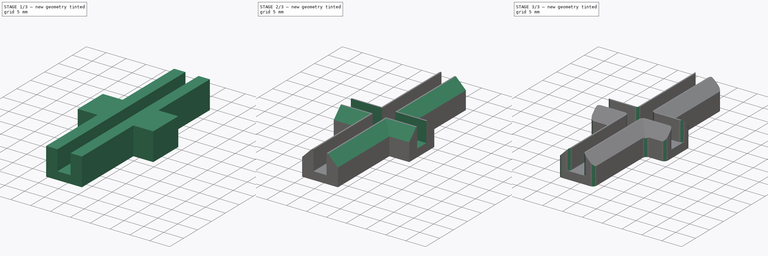
[diagram: build sequence overview — one tinted view per stage of 3, left to right]
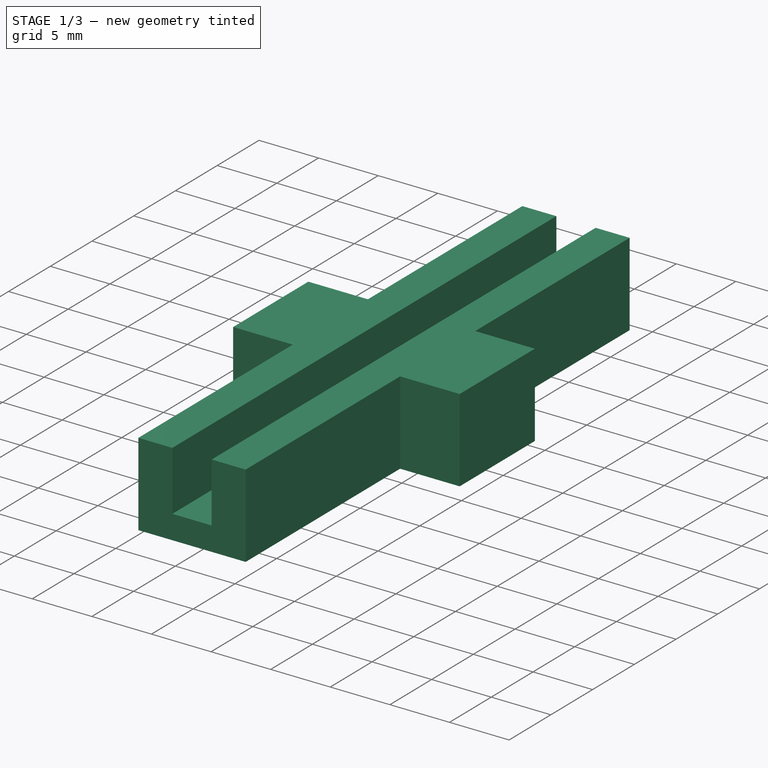
[diagram: stage 1 of 3 — iso view after this stage's code; geometry added in this stage tinted green]
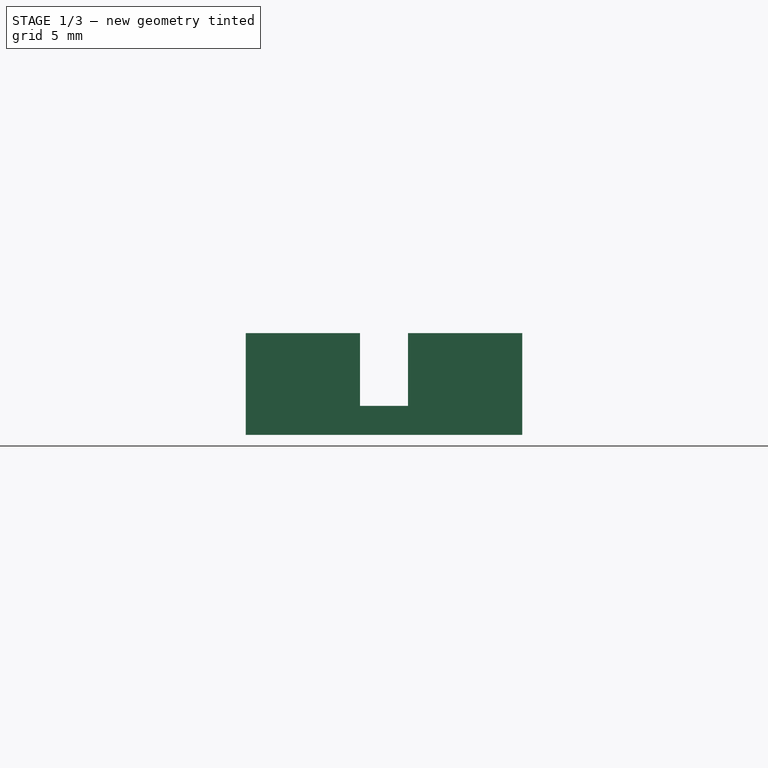
[diagram: stage 1 of 3 — front view after this stage's code; geometry added in this stage tinted green]
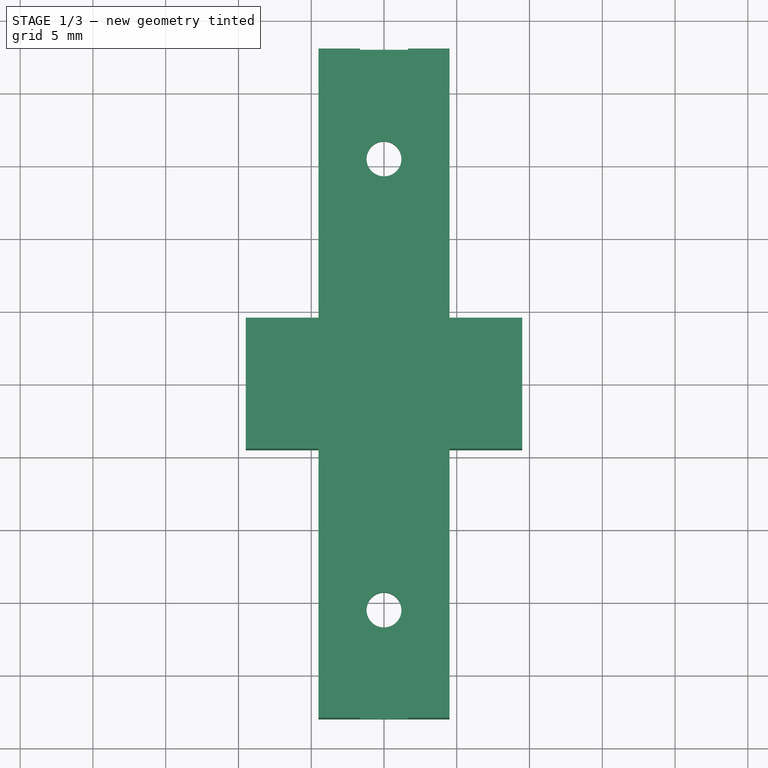
[diagram: stage 1 of 3 — top view after this stage's code; geometry added in this stage tinted green]
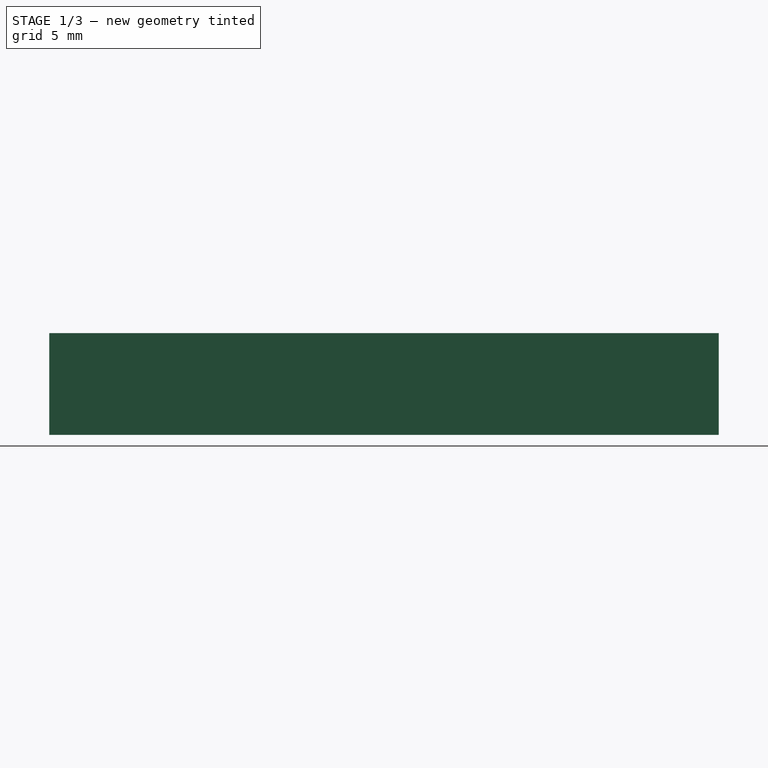
[diagram: stage 1 of 3 — right view after this stage's code; geometry added in this stage tinted green]
FCSTD DOCUMENT  (FreeCAD 0.16R6706 (Git))
Label: Halter3
License: All rights reserved
LicenseURL: http://de.wikipedia.org/wiki/Alle_Rechte_vorbehalten
objects: Sketcher::SketchObject×3, PartDesign::Pocket×2, PartDesign::Fillet×2, PartDesign::Pad×1, PartDesign::Chamfer×1
note: 12 computed .brp shape members not serialized (recipe doc carries the construction recipe); baked Part::Feature solids carry a one-line shape summary decoded from their .brp

FEATURE [Sketcher::SketchObject] Sketch
  sketch-geometry (14):
    g0: LineSegment StartX=-4.5 StartY=23 StartZ=0 EndX=4.5 EndY=23 EndZ=0
    g1: LineSegment StartX=4.5 StartY=23 StartZ=0 EndX=4.5 EndY=4.5 EndZ=0
    g2: LineSegment StartX=4.5 StartY=4.5 StartZ=0 EndX=9.5 EndY=4.5 EndZ=0
    g3: LineSegment StartX=9.5 StartY=4.5 StartZ=0 EndX=9.5 EndY=-4.5 EndZ=0
    g4: LineSegment StartX=9.5 StartY=-4.5 StartZ=0 EndX=4.5 EndY=-4.5 EndZ=0
    g5: LineSegment StartX=4.5 StartY=-4.5 StartZ=0 EndX=4.5 EndY=-23 EndZ=0
    g6: LineSegment StartX=4.5 StartY=-23 StartZ=0 EndX=-4.5 EndY=-23 EndZ=0
    g7: LineSegment StartX=-4.5 StartY=-23 StartZ=0 EndX=-4.5 EndY=-4.5 EndZ=0
    g8: LineSegment StartX=-4.5 StartY=-4.5 StartZ=0 EndX=-9.5 EndY=-4.5 EndZ=0
    g9: LineSegment StartX=-9.5 StartY=-4.5 StartZ=0 EndX=-9.5 EndY=4.5 EndZ=0
    g10: LineSegment StartX=-9.5 StartY=4.5 StartZ=0 EndX=-4.5 EndY=4.5 EndZ=0
    g11: LineSegment StartX=-4.5 StartY=4.5 StartZ=0 EndX=-4.5 EndY=23 EndZ=0
    g12: Circle CenterX=0 CenterY=15.5 CenterZ=0 NormalX=0 NormalY=0 NormalZ=1 Radius=1.2
    g13: Circle CenterX=0 CenterY=-15.5 CenterZ=0 NormalX=0 NormalY=0 NormalZ=1 Radius=1.2
  constraints (42):
    c: Horizontal(g0)
    c: Coincident(g0,g1)
    c: Vertical(g1)
    c: Coincident(g1,g2)
    c: Horizontal(g2)
    c: Coincident(g2,g3)
    c: Vertical(g3)
    c: Coincident(g3,g4)
    c: Horizontal(g4)
    c: Coincident(g4,g5)
    c: Vertical(g5)
    c: Coincident(g5,g6)
    c: Horizontal(g6)
    c: Coincident(g6,g7)
    c: Vertical(g7)
    c: Coincident(g7,g8)
    c: Horizontal(g8)
    c: Coincident(g8,g9)
    c: Vertical(g9)
    c: Coincident(g9,g10)
    c: Horizontal(g10)
    c: Coincident(g10,g11)
    c: Coincident(g11,g0)
    c: Vertical(g11)
    c: DistanceX(g0,g0) = 9
    c: Symmetric(g0,g0,g-2)
    c: Symmetric(g2,g3,g-1)
    c: Equal(g0,g3)
    c: Equal(g3,g9)
    c: Equal(g9,g6)
    c: Symmetric(g9,g8,g-1)
    c: Symmetric(g6,g5,g-2)
    c: DistanceX(g8,g3) = 19
    c: DistanceY(g5,g0) = 46
    c: Symmetric(g0,g5,g-1)
    c: PointOnObject(g12,g-2)
    c: PointOnObject(g13,g-2)
    c: Symmetric(g12,g13,g-1)
    c: Radius(g12) = 1.2
    c: Equal(g12,g13)
    c: Symmetric(g8,g3,g-2)
    c: DistanceY(g13,g12) = 31
FEATURE [PartDesign::Pad] Pad
  Length = 7
  Length2 = 100
  Sketch = -> Sketch
  Type = 0
FEATURE [Sketcher::SketchObject] Sketch001
  ExternalGeometry = -> [Pad]
  Placement = pos=(0,23,0) rot=(0,0.707107,0.707107;3.14159rad)
  Support = -> Pad [Face1]
  sketch-geometry (4):
    g0: LineSegment StartX=-1.65 StartY=7 StartZ=0 EndX=1.65 EndY=7 EndZ=0
    g1: LineSegment StartX=1.65 StartY=7 StartZ=0 EndX=1.65 EndY=2 EndZ=0
    g2: LineSegment StartX=1.65 StartY=2 StartZ=0 EndX=-1.65 EndY=2 EndZ=0
    g3: LineSegment StartX=-1.65 StartY=2 StartZ=0 EndX=-1.65 EndY=7 EndZ=0
  constraints (12):
    c: Coincident(g0,g1)
    c: Coincident(g1,g2)
    c: Coincident(g2,g3)
    c: Coincident(g3,g0)
    c: Horizontal(g0)
    c: Horizontal(g2)
    c: Vertical(g1)
    c: Vertical(g3)
    c: PointOnObject(g0,g-3)
    c: Symmetric(g0,g0,g-2)
    c: DistanceX(g0,g0) = 3.3
    c: DistanceY(g-1,g1) = 2
FEATURE [PartDesign::Pocket] Pocket
  Length = 50
  Sketch = -> Sketch001
  Type = 0
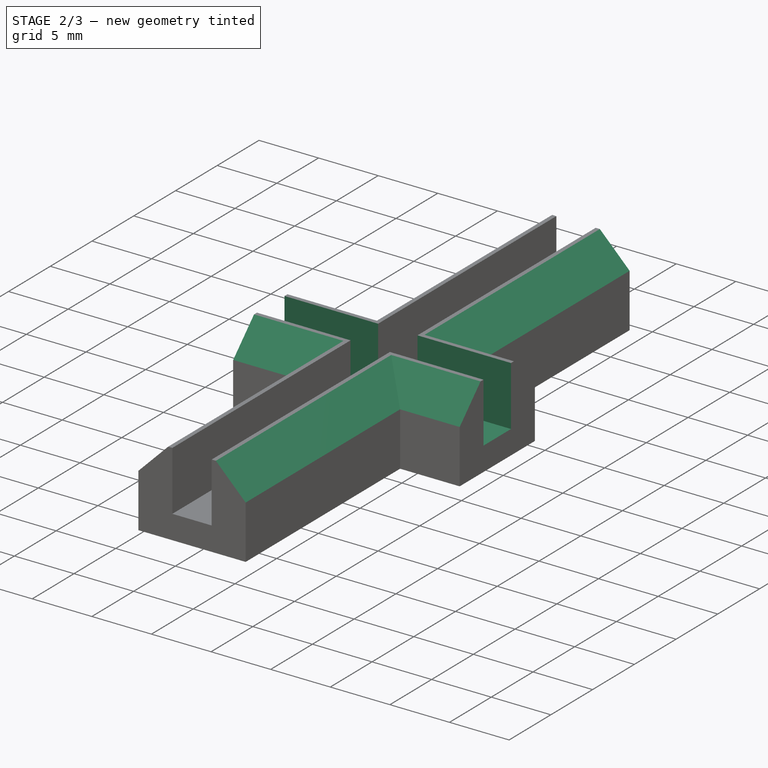
[diagram: stage 2 of 3 — iso view after this stage's code; geometry added in this stage tinted green]
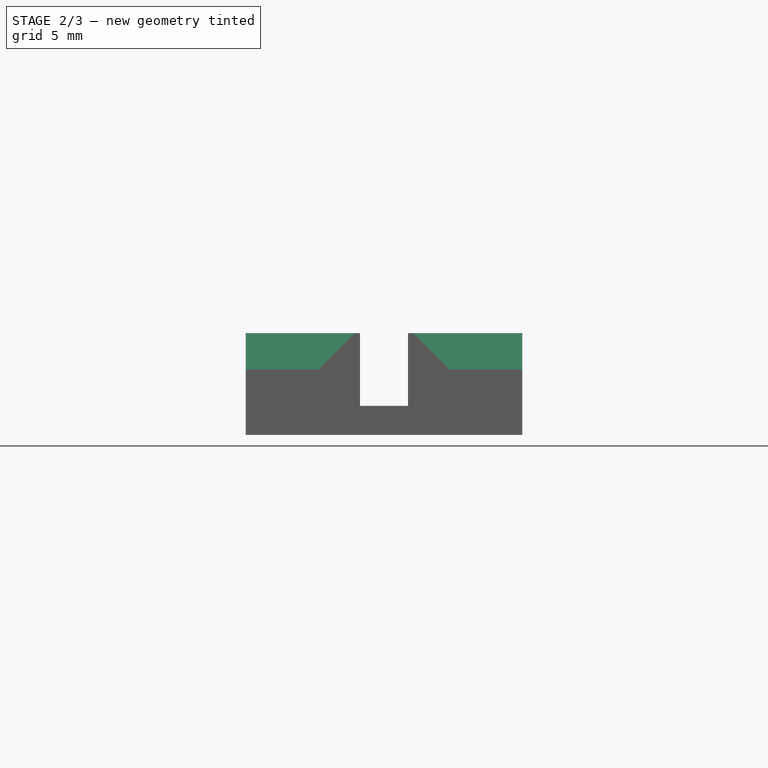
[diagram: stage 2 of 3 — front view after this stage's code; geometry added in this stage tinted green]
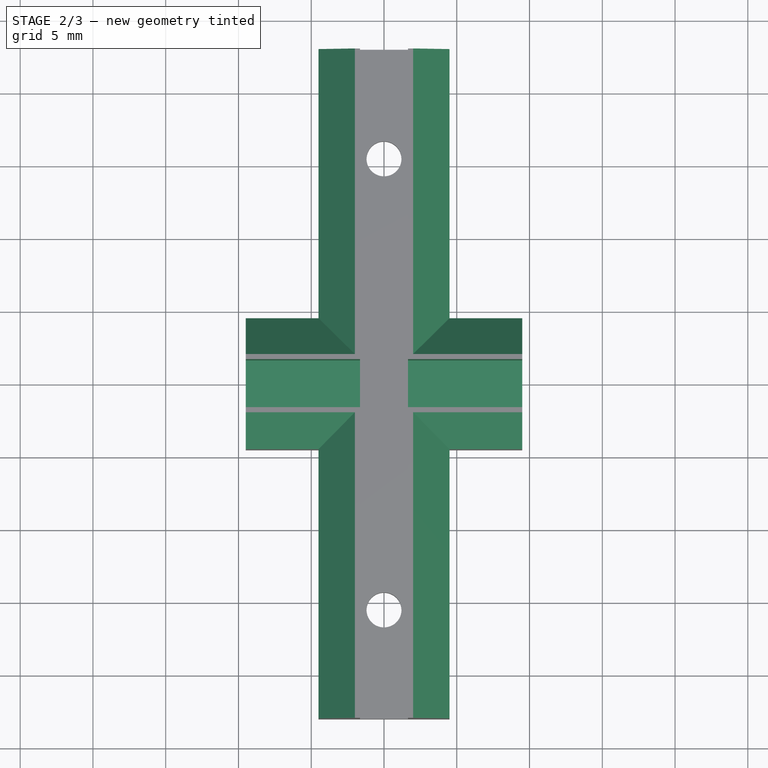
[diagram: stage 2 of 3 — top view after this stage's code; geometry added in this stage tinted green]
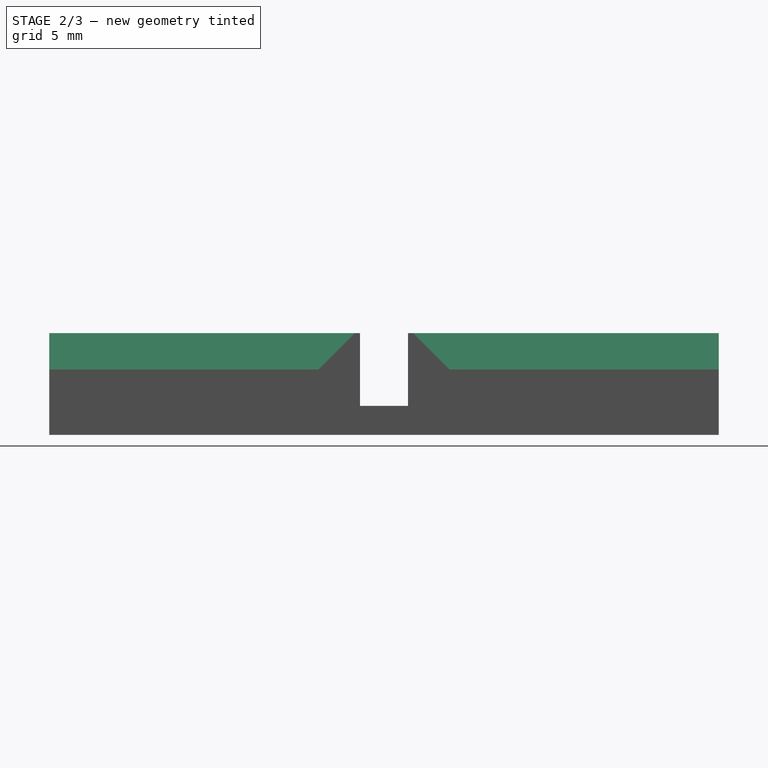
[diagram: stage 2 of 3 — right view after this stage's code; geometry added in this stage tinted green]
FEATURE [Sketcher::SketchObject] Sketch002
  ExternalGeometry = -> [Pocket]
  Placement = pos=(-9.5,0,0) rot=(0.57735,-0.57735,-0.57735;2.0944rad)
  Support = -> Pocket [Face17]
  sketch-geometry (4):
    g0: LineSegment StartX=-1.65 StartY=7 StartZ=0 EndX=1.65 EndY=7 EndZ=0
    g1: LineSegment StartX=1.65 StartY=7 StartZ=0 EndX=1.65 EndY=2 EndZ=0
    g2: LineSegment StartX=1.65 StartY=2 StartZ=0 EndX=-1.65 EndY=2 EndZ=0
    g3: LineSegment StartX=-1.65 StartY=2 StartZ=0 EndX=-1.65 EndY=7 EndZ=0
  constraints (12):
    c: Coincident(g0,g1)
    c: Coincident(g1,g2)
    c: Coincident(g2,g3)
    c: Coincident(g3,g0)
    c: Horizontal(g0)
    c: Horizontal(g2)
    c: Vertical(g1)
    c: Vertical(g3)
    c: PointOnObject(g0,g-3)
    c: Symmetric(g0,g0,g-2)
    c: DistanceX(g0,g0) = 3.3
    c: DistanceY(g-1,g1) = 2
FEATURE [PartDesign::Pocket] Pocket001
  Length = 30
  Sketch = -> Sketch002
  Type = 0
FEATURE [PartDesign::Chamfer] Chamfer
  Base = -> Pocket001 [Edge38,Edge37,Edge23,Edge24,Edge47,Edge49,Edge57,Edge59]
  Size = 2.5
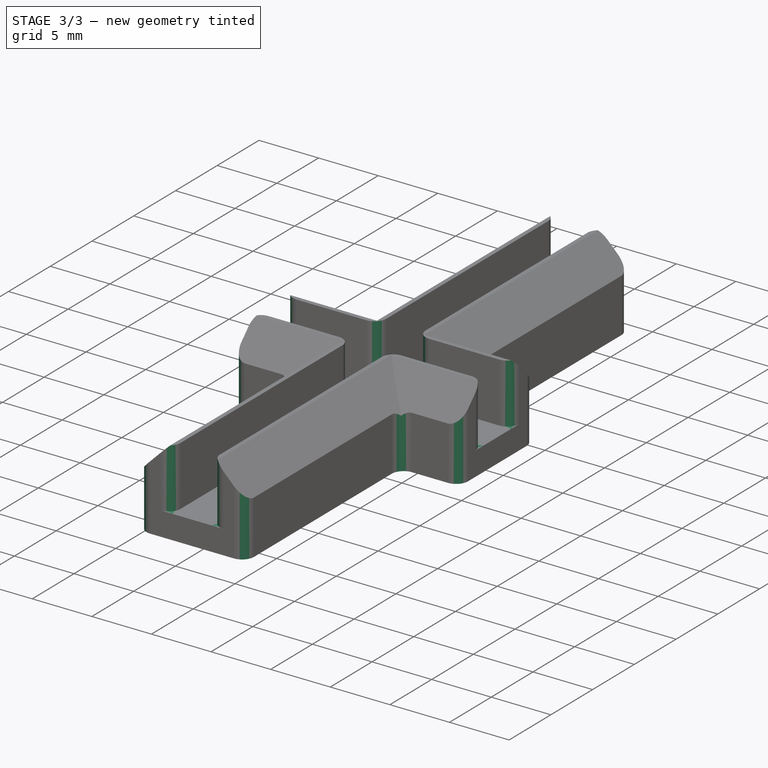
[diagram: stage 3 of 3 — iso view after this stage's code; geometry added in this stage tinted green]
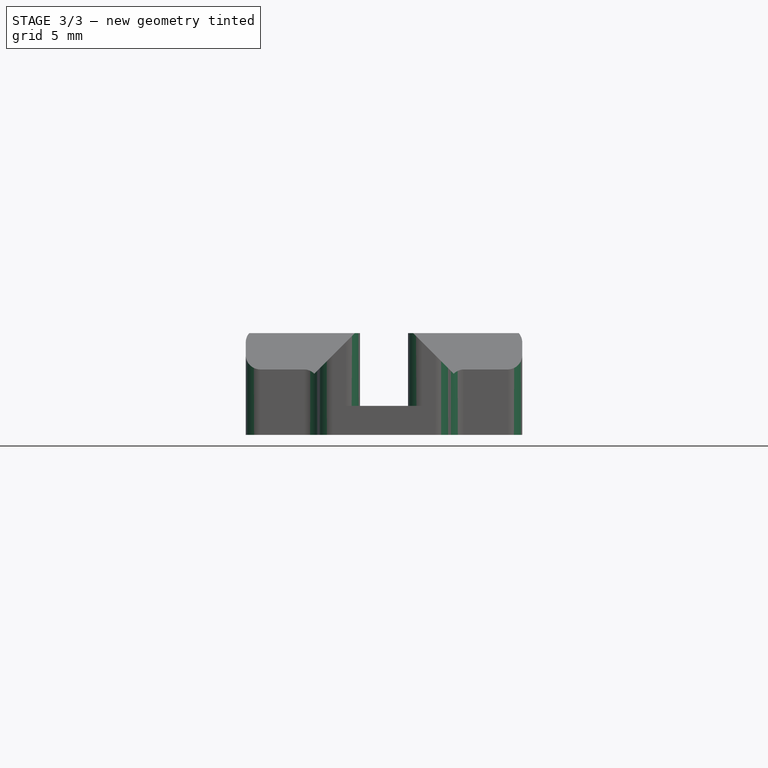
[diagram: stage 3 of 3 — front view after this stage's code; geometry added in this stage tinted green]
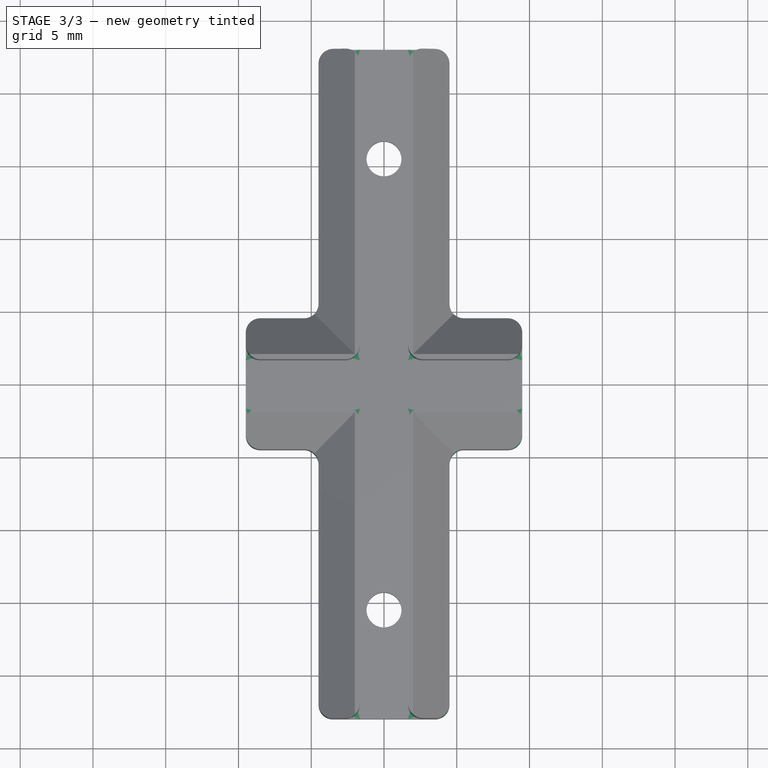
[diagram: stage 3 of 3 — top view after this stage's code; geometry added in this stage tinted green]
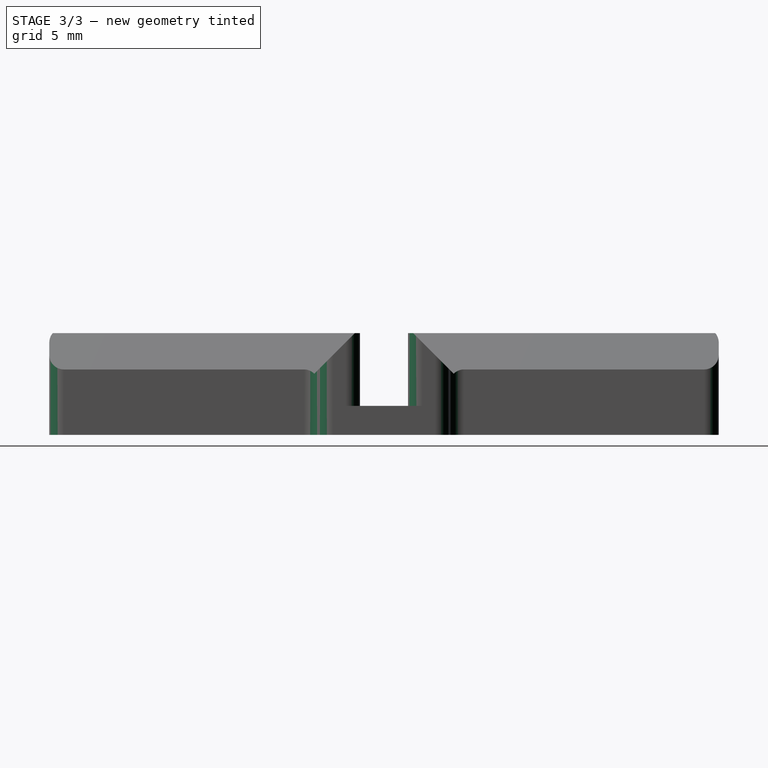
[diagram: stage 3 of 3 — right view after this stage's code; geometry added in this stage tinted green]
FEATURE [PartDesign::Fillet] Fillet
  Base = -> Chamfer [Edge73,Edge77,Edge10,Edge6,Edge54,Edge52,Edge62,Edge66,Edge34,Edge45,Edge92,Edge99]
  Radius = 1
FEATURE [PartDesign::Fillet] Fillet001
  Base = -> Fillet [Edge100,Edge103,Edge39,Edge7,Edge3,Edge19,Edge55,Edge83,Edge86,Edge88,Edge91,Edge98]
  Radius = 1
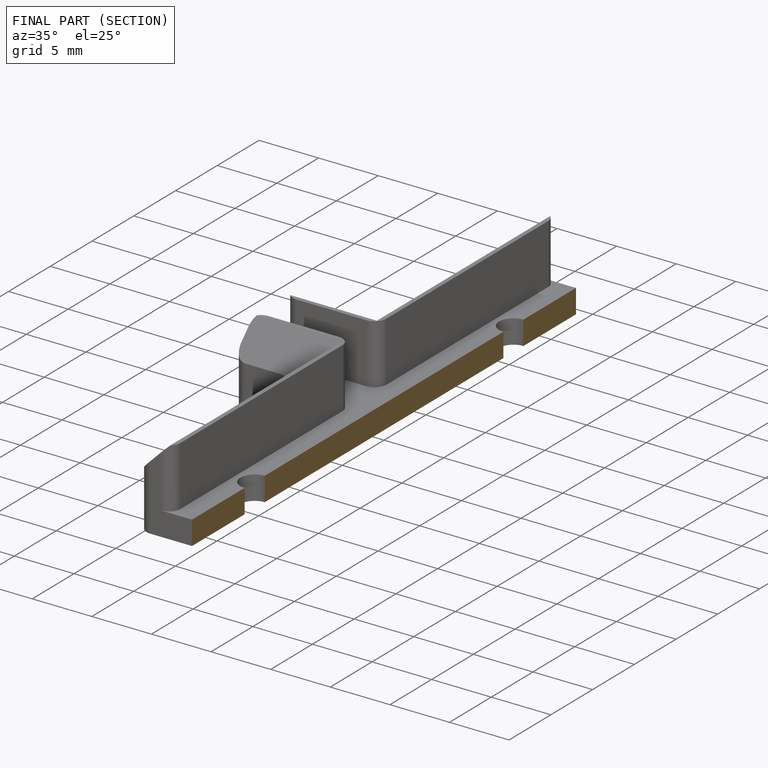
[diagram: finished part — half-section view (interior)]
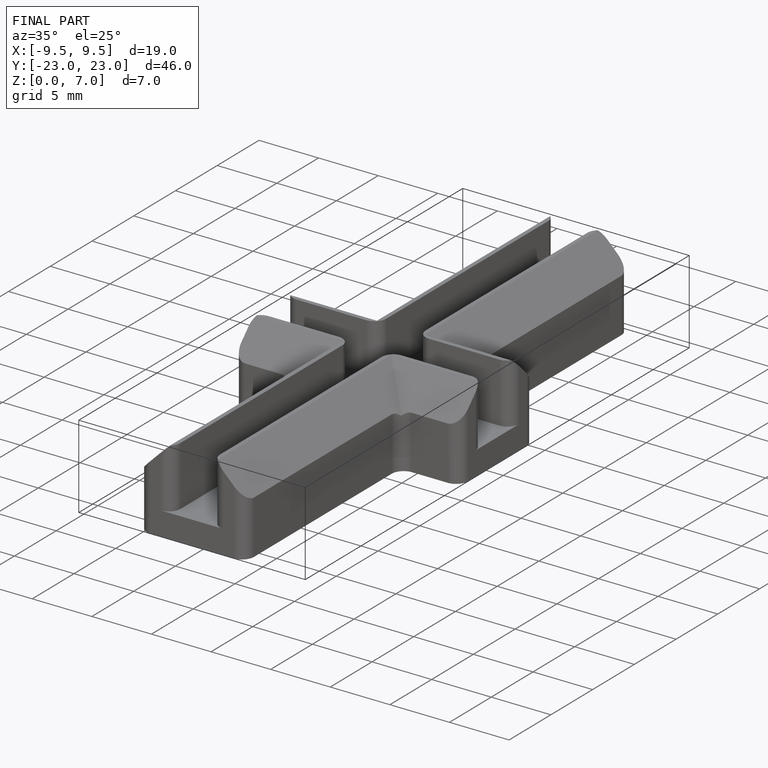
[diagram: finished part — iso view with bounding-box wireframe]
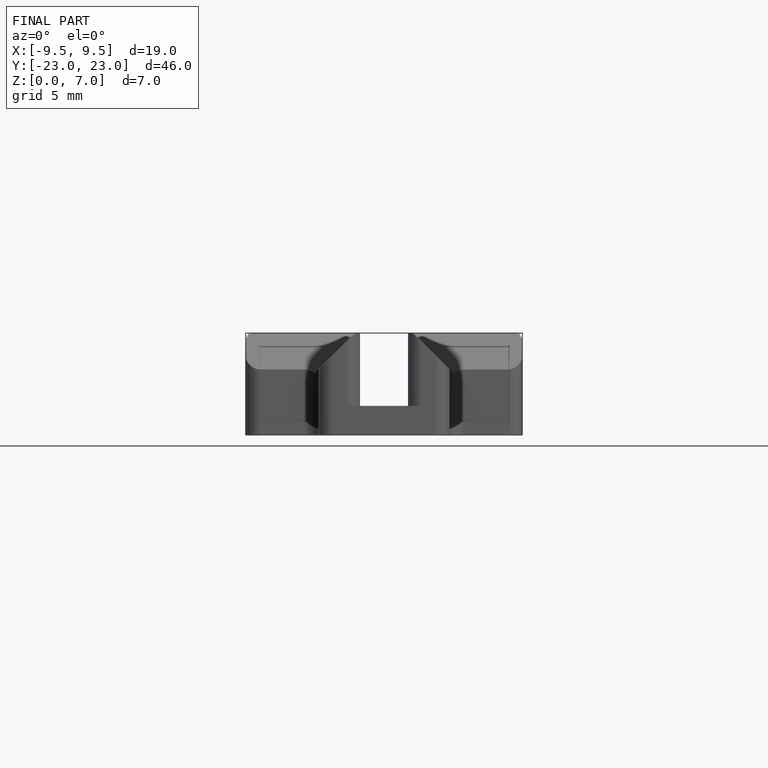
[diagram: finished part — front view with bounding-box wireframe]
